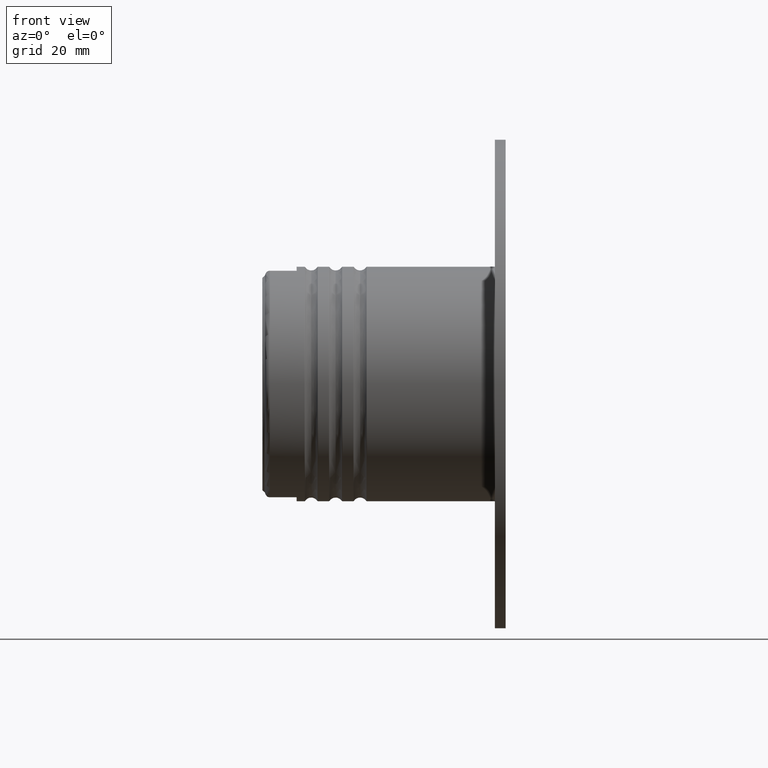
[diagram: clean part render]
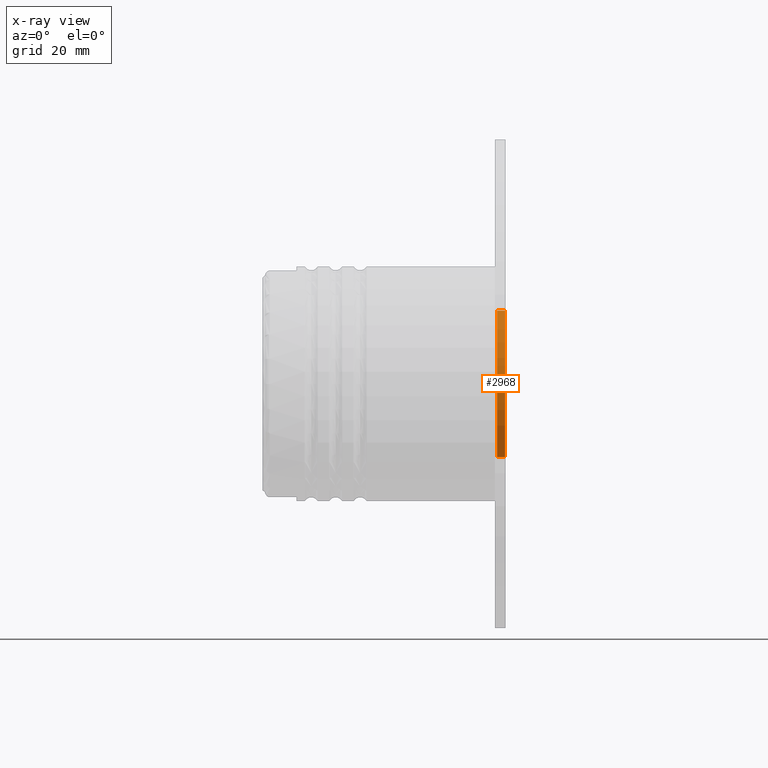
[diagram: x-ray — body ghosted, one internal face saturated and labeled with its STEP entity id]
A machine part, front view, then the same camera in x-ray: the body is ghosted and one INTERNAL B-rep face — a face not visible from any outside direction — is saturated and labeled: STEP entity #2968.
In plain terms, the highlighted cylindrical surface (partial cylindrical patch) has radius 15 mm, axis along (1, 0, 0).
Its self-contained STEP definition (entity closure, byte-faithful):
#78 = VERTEX_POINT ( 'NONE', #2710 ) ;
#259 = CARTESIAN_POINT ( 'NONE',  ( -0.1000000000000000056, 1.836970198721029589E-15, 15.00000000000000000 ) ) ;
#346 = ORIENTED_EDGE ( 'NONE', *, *, #1002, .T. ) ;
#448 = LINE ( 'NONE', #870, #592 ) ;
#465 = AXIS2_PLACEMENT_3D ( 'NONE', #4538, #1809, #3580 ) ;
#475 = CARTESIAN_POINT ( 'NONE',  ( -1.699999999999999734, 1.836970198721029589E-15, 15.00000000000000000 ) ) ;
#592 = VECTOR ( 'NONE', #892, 1000.000000000000000 ) ;
#764 = DIRECTION ( 'NONE',  ( 1.000000000000000000, -0.0000000000000000000, -0.0000000000000000000 ) ) ;
#852 = EDGE_CURVE ( 'NONE', #2894, #4017, #4677, .T. ) ;
#870 = CARTESIAN_POINT ( 'NONE',  ( 0.0000000000000000000, 0.0000000000000000000, -15.00000000000000000 ) ) ;
#892 = DIRECTION ( 'NONE',  ( 1.000000000000000000, -0.0000000000000000000, -0.0000000000000000000 ) ) ;
#1002 = EDGE_CURVE ( 'NONE', #4017, #78, #448, .T. ) ;
#1268 = CARTESIAN_POINT ( 'NONE',  ( -0.1000000000000000056, 0.0000000000000000000, 0.0000000000000000000 ) ) ;
#1419 = CYLINDRICAL_SURFACE ( 'NONE', #465, 15.00000000000000000 ) ;
#1809 = DIRECTION ( 'NONE',  ( 1.000000000000000000, -0.0000000000000000000, -0.0000000000000000000 ) ) ;
#1972 = CARTESIAN_POINT ( 'NONE',  ( 0.0000000000000000000, 1.836970198721029589E-15, 15.00000000000000000 ) ) ;
#2136 = ORIENTED_EDGE ( 'NONE', *, *, #5140, .F. ) ;
#2625 = DIRECTION ( 'NONE',  ( 1.000000000000000000, -0.0000000000000000000, -0.0000000000000000000 ) ) ;
#2710 = CARTESIAN_POINT ( 'NONE',  ( -0.1000000000000000056, 0.0000000000000000000, -15.00000000000000000 ) ) ;
#2732 = VERTEX_POINT ( 'NONE', #259 ) ;
#2759 = EDGE_CURVE ( 'NONE', #2732, #78, #4652, .T. ) ;
#2894 = VERTEX_POINT ( 'NONE', #475 ) ;
#2936 = LINE ( 'NONE', #1972, #5646 ) ;
#2968 = ADVANCED_FACE ( 'NONE', ( #4097 ), #1419, .T. ) ;
#3073 = AXIS2_PLACEMENT_3D ( 'NONE', #4470, #2625, #4894 ) ;
#3211 = ORIENTED_EDGE ( 'NONE', *, *, #852, .T. ) ;
#3261 = CARTESIAN_POINT ( 'NONE',  ( -1.699999999999999734, 0.0000000000000000000, -15.00000000000000000 ) ) ;
#3580 = DIRECTION ( 'NONE',  ( 0.0000000000000000000, 0.0000000000000000000, -1.000000000000000000 ) ) ;
#3796 = ORIENTED_EDGE ( 'NONE', *, *, #2759, .F. ) ;
#4017 = VERTEX_POINT ( 'NONE', #3261 ) ;
#4097 = FACE_OUTER_BOUND ( 'NONE', #4966, .T. ) ;
#4393 = DIRECTION ( 'NONE',  ( 0.0000000000000000000, 0.0000000000000000000, -1.000000000000000000 ) ) ;
#4470 = CARTESIAN_POINT ( 'NONE',  ( -1.699999999999999734, 0.0000000000000000000, 0.0000000000000000000 ) ) ;
#4538 = CARTESIAN_POINT ( 'NONE',  ( 0.0000000000000000000, 0.0000000000000000000, 0.0000000000000000000 ) ) ;
#4652 = CIRCLE ( 'NONE', #4926, 15.00000000000000000 ) ;
#4677 = CIRCLE ( 'NONE', #3073, 15.00000000000000000 ) ;
#4894 = DIRECTION ( 'NONE',  ( 0.0000000000000000000, 0.0000000000000000000, -1.000000000000000000 ) ) ;
#4926 = AXIS2_PLACEMENT_3D ( 'NONE', #1268, #5696, #4393 ) ;
#4966 = EDGE_LOOP ( 'NONE', ( #2136, #3211, #346, #3796 ) ) ;
#5140 = EDGE_CURVE ( 'NONE', #2894, #2732, #2936, .T. ) ;
#5646 = VECTOR ( 'NONE', #764, 1000.000000000000000 ) ;
#5696 = DIRECTION ( 'NONE',  ( 1.000000000000000000, -0.0000000000000000000, -0.0000000000000000000 ) ) ;